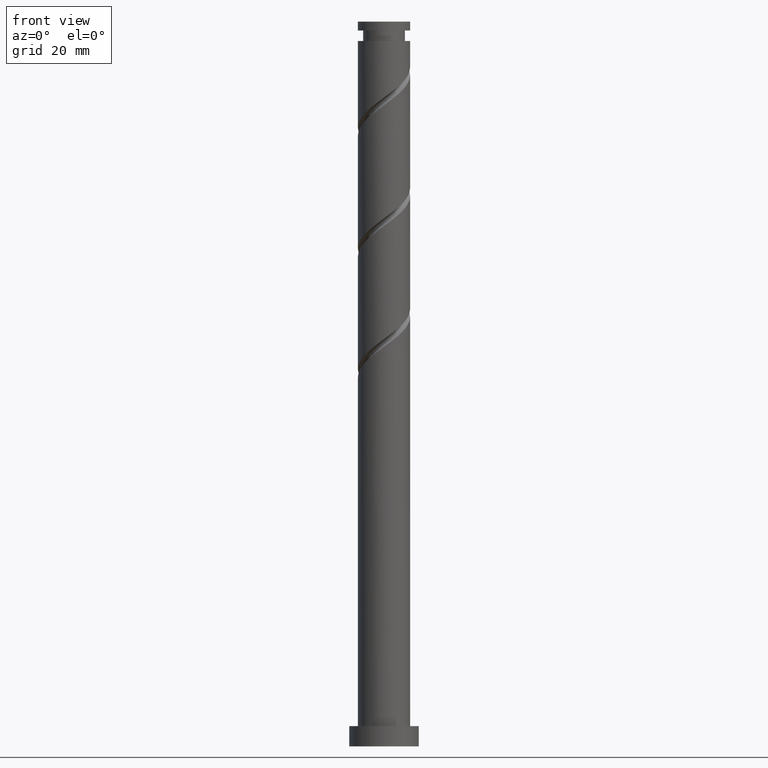
[diagram: clean part render]
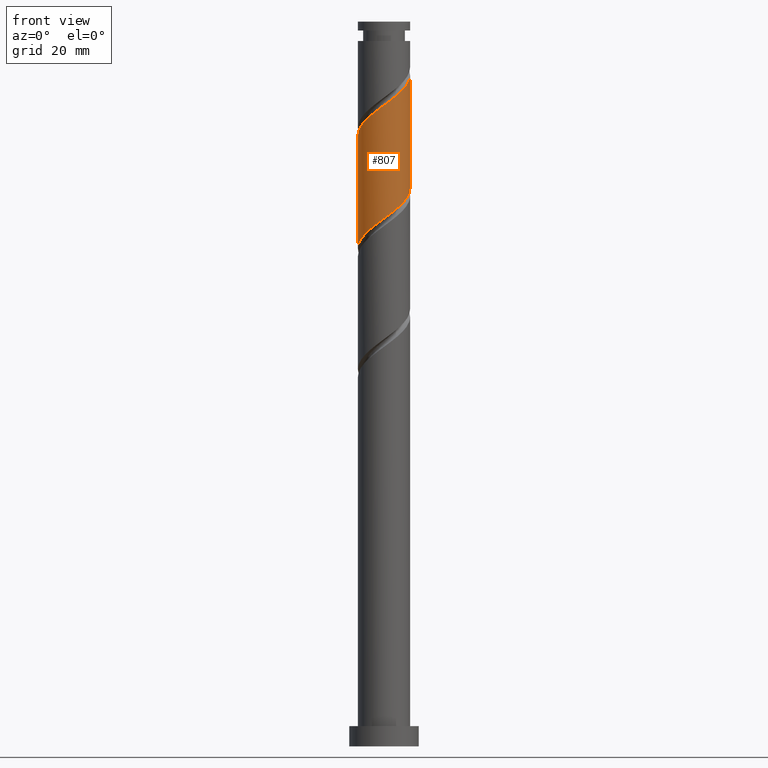
[diagram: same view with one face highlighted and labeled with its STEP entity id]
A machine part, front view. The second image highlights one B-rep face of the part: STEP entity #807.
In plain terms, the highlighted cylindrical surface (edge-blend (fillet) strip) has radius 9 mm, axis along (-0, -0, -1).
Its self-contained STEP definition (entity closure, byte-faithful):
#4 = CARTESIAN_POINT ( 'NONE',  ( 8.194847551901844440, -3.877973793086807230, 189.6285949597692024 ) ) ;
#15 = CARTESIAN_POINT ( 'NONE',  ( 2.861919278812256273, -8.602535973789519730, 223.2824411136154197 ) ) ;
#23 = CARTESIAN_POINT ( 'NONE',  ( 0.3718293201155509764, -8.992315772741880764, 182.4170564982307781 ) ) ;
#34 = CARTESIAN_POINT ( 'NONE',  ( 5.684690096369587664, -6.977413454012724614, 225.6862872674615517 ) ) ;
#39 = CARTESIAN_POINT ( 'NONE',  ( -9.000000000000012434, -6.221670429847296946E-15, 210.7365705197747445 ) ) ;
#41 = CARTESIAN_POINT ( 'NONE',  ( 8.881932594424455374, -1.453022156782449503, 230.4939795751537872 ) ) ;
#98 = DIRECTION ( 'NONE',  ( -0.000000000000000000, -0.000000000000000000, -1.000000000000000000 ) ) ;
#105 = CARTESIAN_POINT ( 'NONE',  ( 0.000000000000000000, 0.000000000000000000, 250.0000000000000000 ) ) ;
#145 = CARTESIAN_POINT ( 'NONE',  ( -8.884780049955336878, -1.804131536971649741, 212.0644923956666901 ) ) ;
#149 = EDGE_LOOP ( 'NONE', ( #1182, #1352, #400, #968 ) ) ;
#159 = CARTESIAN_POINT ( 'NONE',  ( 8.539813800928584442, -2.841052665029232926, 190.4298770110512748 ) ) ;
#168 = CARTESIAN_POINT ( 'NONE',  ( 3.849698997916966903, -8.135097886653692711, 224.0837231648975205 ) ) ;
#177 = CARTESIAN_POINT ( 'NONE',  ( 8.276108812811241222, -3.536385572658672150, 228.8914154725897561 ) ) ;
#204 = CARTESIAN_POINT ( 'NONE',  ( -8.881932594424444716, -1.453022156782441732, 172.8016718828461649 ) ) ;
#255 =( BOUNDED_CURVE ( )  B_SPLINE_CURVE ( 2, ( #1713, #599, #1023, #1585, #159, #4, #1555, #1566, #1317, #419, #1298, #1408, #1160, #1278, #23, #1012, #609, #571, #296, #725, #1003, #1288, #589, #1575, #307, #1437, #204, #781, #1341 ),
 .UNSPECIFIED., .F., .T. ) 
 B_SPLINE_CURVE_WITH_KNOTS ( ( 3, 2, 2, 2, 2, 2, 2, 2, 2, 2, 2, 2, 2, 2, 3 ),
 ( 0.5545271625973833274, 0.5576923076923077094, 0.5673076923076922906, 0.5769230769230768718, 0.5865384615384615641, 0.5961538461538461453, 0.6057692307692307265, 0.6153846153846154188, 0.6250000000000000000, 0.6346153846153845812, 0.6442307692307692735, 0.6538461538461538547, 0.6634615384615384359, 0.6730769230769231282, 0.6795271625973834384 ),
 .UNSPECIFIED. ) 
 CURVE ( )  GEOMETRIC_REPRESENTATION_ITEM ( )  RATIONAL_B_SPLINE_CURVE ( ( 0.9061636035682715251, 0.9069090390690601744, 0.9090909090909166101, 0.9024626128164202621, 0.9090909090909166101, 0.9024626128164202621, 0.9090909090909166101, 0.9024626128164202621, 0.9090909090909166101, 0.9024626128164202621, 0.9090909090909166101, 0.9024626128164202621, 0.9090909090909166101, 0.9024626128164202621, 0.9090909090909166101, 0.9024626128164202621, 0.9090909090909166101, 0.9024626128164202621, 0.9090909090909166101, 0.9024626128164202621, 0.9090909090909166101, 0.9024626128164202621, 0.9090909090909166101, 0.9024626128164202621, 0.9090909090909166101, 0.9024626128164202621, 0.9090909090909166101, 0.9046444828382766978, 0.9061636035682715251 ) ) 
 REPRESENTATION_ITEM ( '' )  );
#287 = CARTESIAN_POINT ( 'NONE',  ( -2.513026658482502729, -8.642030838509922930, 219.2760308572051713 ) ) ;
#296 = CARTESIAN_POINT ( 'NONE',  ( -3.849698997916967791, -8.135097886653674948, 179.2119282931026021 ) ) ;
#307 = CARTESIAN_POINT ( 'NONE',  ( -8.276108812811228788, -3.536385572658663268, 174.4042359854103097 ) ) ;
#316 = CARTESIAN_POINT ( 'NONE',  ( -3.562359181962312160, -8.336894157746568723, 218.4747488059231273 ) ) ;
#379 = VECTOR ( 'NONE', #98, 1000.000000000000000 ) ;
#387 = DIRECTION ( 'NONE',  ( -0.000000000000000000, -0.000000000000000000, -1.000000000000000000 ) ) ;
#400 = ORIENTED_EDGE ( 'NONE', *, *, #1593, .T. ) ;
#419 = CARTESIAN_POINT ( 'NONE',  ( 5.453992861915037516, -7.242110811148886995, 186.4234667546410265 ) ) ;
#427 = CARTESIAN_POINT ( 'NONE',  ( -1.463694135002693519, -8.947167519273277136, 220.0773129084871869 ) ) ;
#438 = CARTESIAN_POINT ( 'NONE',  ( 4.837478717021678420, -7.667659799517866581, 224.8850052161795361 ) ) ;
#527 = FACE_OUTER_BOUND ( 'NONE', #149, .T. ) ;
#540 = VECTOR ( 'NONE', #954, 1000.000000000000000 ) ;
#571 = CARTESIAN_POINT ( 'NONE',  ( -2.861919278812258494, -8.602535973789500190, 180.0132103443845892 ) ) ;
#589 = CARTESIAN_POINT ( 'NONE',  ( -7.189307669428957048, -5.414227113290500881, 176.0068000879743977 ) ) ;
#599 = CARTESIAN_POINT ( 'NONE',  ( 9.000000000000000000, -0.3579581730309212562, 192.2949100225922621 ) ) ;
#609 = CARTESIAN_POINT ( 'NONE',  ( -1.790977386791918313, -8.820000000000000284, 180.8144923956666901 ) ) ;
#725 = CARTESIAN_POINT ( 'NONE',  ( -4.837478717021676644, -7.667659799517847929, 178.4106462418205012 ) ) ;
#734 = CARTESIAN_POINT ( 'NONE',  ( 8.705503762482042163, -2.531484027243907420, 229.6926975238717716 ) ) ;
#781 = CARTESIAN_POINT ( 'NONE',  ( -9.000000000000007105, -0.7313079468333955058, 172.2654483422401483 ) ) ;
#787 = CARTESIAN_POINT ( 'NONE',  ( 9.000000000000001776, 1.102182119232617911E-15, 250.0000000000000000 ) ) ;
#803 = CARTESIAN_POINT ( 'NONE',  ( 9.000000000000001776, -9.272681890637864536E-15, 192.5590809382252075 ) ) ;
#807 = ADVANCED_FACE ( 'NONE', ( #527 ), #1246, .T. ) ;
#829 = EDGE_CURVE ( 'NONE', #1478, #1301, #1334, .T. ) ;
#848 = CARTESIAN_POINT ( 'NONE',  ( -6.241326581552884001, -6.484276559678935570, 216.0709026520769385 ) ) ;
#856 = CARTESIAN_POINT ( 'NONE',  ( 1.790977386791917647, -8.820000000000012719, 222.4811590623333473 ) ) ;
#866 = CARTESIAN_POINT ( 'NONE',  ( -4.508176021938681721, -7.789502484447732300, 217.6734667546410265 ) ) ;
#878 = CARTESIAN_POINT ( 'NONE',  ( -5.453992861915051726, -7.242110811148893212, 216.8721847033589540 ) ) ;
#889 = CARTESIAN_POINT ( 'NONE',  ( -0.3718293201155592476, -8.992315772741894975, 220.8785949597692309 ) ) ;
#910 = EDGE_CURVE ( 'NONE', #1740, #1129, #255, .T. ) ;
#954 = DIRECTION ( 'NONE',  ( -0.000000000000000000, -0.000000000000000000, -1.000000000000000000 ) ) ;
#966 = LINE ( 'NONE', #787, #379 ) ;
#968 = ORIENTED_EDGE ( 'NONE', *, *, #910, .F. ) ;
#1003 = CARTESIAN_POINT ( 'NONE',  ( -5.684690096369581447, -6.977413454012713956, 177.6093641905384288 ) ) ;
#1012 = CARTESIAN_POINT ( 'NONE',  ( -0.7200354947715811305, -9.037464026210495049, 181.6157744469487056 ) ) ;
#1023 = CARTESIAN_POINT ( 'NONE',  ( 8.971570738161089409, -0.7147856253253362935, 192.0324411136154481 ) ) ;
#1041 = CARTESIAN_POINT ( 'NONE',  ( 7.846713863140434064, -4.541287118073442208, 228.0901334213076836 ) ) ;
#1085 = LINE ( 'NONE', #1520, #540 ) ;
#1099 = CARTESIAN_POINT ( 'NONE',  ( -9.000000000000012434, -6.221670429847296946E-15, 210.7365705197747445 ) ) ;
#1129 = VERTEX_POINT ( 'NONE', #1800 ) ;
#1149 = CARTESIAN_POINT ( 'NONE',  ( 9.000000000000010658, 4.995283470117782016E-15, 231.5699038531080873 ) ) ;
#1160 = CARTESIAN_POINT ( 'NONE',  ( 2.513026658482495179, -8.642030838509908719, 184.0196206007948660 ) ) ;
#1170 = CARTESIAN_POINT ( 'NONE',  ( -8.539813800928600429, -2.841052665029230262, 212.8657744469487056 ) ) ;
#1182 = ORIENTED_EDGE ( 'NONE', *, *, #1514, .F. ) ;
#1246 = CYLINDRICAL_SURFACE ( 'NONE', #1722, 9.000000000000001776 ) ;
#1278 = CARTESIAN_POINT ( 'NONE',  ( 1.463694135002683083, -8.947167519273268255, 183.2183385495128221 ) ) ;
#1288 = CARTESIAN_POINT ( 'NONE',  ( -6.531901475717487138, -6.287167108507572877, 176.8080821392563848 ) ) ;
#1298 = CARTESIAN_POINT ( 'NONE',  ( 4.508176021938668399, -7.789502484447722530, 185.6221847033590393 ) ) ;
#1301 = VERTEX_POINT ( 'NONE', #1473 ) ;
#1308 = CARTESIAN_POINT ( 'NONE',  ( -7.611753926546287907, -4.802208050647889692, 214.4683385495128505 ) ) ;
#1317 = CARTESIAN_POINT ( 'NONE',  ( 6.241326581552871566, -6.484276559678926688, 187.2247488059231273 ) ) ;
#1334 =( BOUNDED_CURVE ( )  B_SPLINE_CURVE ( 2, ( #1099, #1675, #1595, #145, #1170, #1745, #1308, #1736, #848, #878, #866, #316, #287, #427, #889, #1445, #856, #15, #168, #438, #34, #1703, #1725, #1041, #177, #734, #41, #1415, #1149 ),
 .UNSPECIFIED., .F., .T. ) 
 B_SPLINE_CURVE_WITH_KNOTS ( ( 3, 2, 2, 2, 2, 2, 2, 2, 2, 2, 2, 2, 2, 2, 3 ),
 ( 0.5545271625973833274, 0.5576923076923077094, 0.5673076923076922906, 0.5769230769230768718, 0.5865384615384615641, 0.5961538461538461453, 0.6057692307692308376, 0.6153846153846154188, 0.6250000000000000000, 0.6346153846153845812, 0.6442307692307691624, 0.6538461538461538547, 0.6634615384615384359, 0.6730769230769231282, 0.6795271625973832164 ),
 .UNSPECIFIED. ) 
 CURVE ( )  GEOMETRIC_REPRESENTATION_ITEM ( )  RATIONAL_B_SPLINE_CURVE ( ( 0.9061636035682775203, 0.9069090390690661696, 0.9090909090909228274, 0.9024626128164262573, 0.9090909090909228274, 0.9024626128164262573, 0.9090909090909228274, 0.9024626128164262573, 0.9090909090909228274, 0.9024626128164262573, 0.9090909090909228274, 0.9024626128164262573, 0.9090909090909228274, 0.9024626128164262573, 0.9090909090909228274, 0.9024626128164262573, 0.9090909090909228274, 0.9024626128164262573, 0.9090909090909228274, 0.9024626128164262573, 0.9090909090909228274, 0.9024626128164262573, 0.9090909090909228274, 0.9024626128164262573, 0.9090909090909228274, 0.9024626128164262573, 0.9090909090909228274, 0.9046444828382829151, 0.9061636035682776313 ) ) 
 REPRESENTATION_ITEM ( '' )  );
#1341 = CARTESIAN_POINT ( 'NONE',  ( -9.000000000000001776, 5.593521011449292137E-15, 171.7257476048918363 ) ) ;
#1352 = ORIENTED_EDGE ( 'NONE', *, *, #829, .F. ) ;
#1408 = CARTESIAN_POINT ( 'NONE',  ( 3.562359181962302390, -8.336894157746556289, 184.8209026520768532 ) ) ;
#1415 = CARTESIAN_POINT ( 'NONE',  ( 9.000000000000012434, -0.7313079468334245936, 231.0302031157597753 ) ) ;
#1437 = CARTESIAN_POINT ( 'NONE',  ( -8.705503762482027952, -2.531484027243894985, 173.6029539341281520 ) ) ;
#1445 = CARTESIAN_POINT ( 'NONE',  ( 0.7200354947715748022, -9.037464026210509260, 221.6798770110512748 ) ) ;
#1473 = CARTESIAN_POINT ( 'NONE',  ( 9.000000000000012434, 4.995283470117782016E-15, 231.5699038531080873 ) ) ;
#1478 = VERTEX_POINT ( 'NONE', #39 ) ;
#1514 = EDGE_CURVE ( 'NONE', #1301, #1740, #966, .T. ) ;
#1520 = CARTESIAN_POINT ( 'NONE',  ( -9.000000000000001776, 0.000000000000000000, 250.0000000000000000 ) ) ;
#1555 = CARTESIAN_POINT ( 'NONE',  ( 7.611753926546275473, -4.802208050647887916, 188.8273129084871584 ) ) ;
#1566 = CARTESIAN_POINT ( 'NONE',  ( 7.028660301190700288, -5.726442308208967269, 188.0260308572051144 ) ) ;
#1575 = CARTESIAN_POINT ( 'NONE',  ( -7.846713863140423406, -4.541287118073426221, 175.2055180366923253 ) ) ;
#1585 = CARTESIAN_POINT ( 'NONE',  ( 8.884780049955320891, -1.804131536971650407, 191.2311590623333473 ) ) ;
#1593 = EDGE_CURVE ( 'NONE', #1478, #1129, #1085, .T. ) ;
#1595 = CARTESIAN_POINT ( 'NONE',  ( -8.971570738161101843, -0.7147856253253278558, 211.2632103443846177 ) ) ;
#1675 = CARTESIAN_POINT ( 'NONE',  ( -9.000000000000015987, -0.3579581730309135956, 211.0007414354077753 ) ) ;
#1703 = CARTESIAN_POINT ( 'NONE',  ( 6.531901475717496020, -6.287167108507587976, 226.4875693187436241 ) ) ;
#1713 = CARTESIAN_POINT ( 'NONE',  ( 9.000000000000001776, -9.272681890637864536E-15, 192.5590809382252075 ) ) ;
#1722 = AXIS2_PLACEMENT_3D ( 'NONE', #105, #387, #1802 ) ;
#1725 = CARTESIAN_POINT ( 'NONE',  ( 7.189307669428963266, -5.414227113290515980, 227.2888513700256681 ) ) ;
#1736 = CARTESIAN_POINT ( 'NONE',  ( -7.028660301190715387, -5.726442308208970822, 215.2696206007948376 ) ) ;
#1740 = VERTEX_POINT ( 'NONE', #803 ) ;
#1745 = CARTESIAN_POINT ( 'NONE',  ( -8.194847551901860427, -3.877973793086812559, 213.6670564982308065 ) ) ;
#1800 = CARTESIAN_POINT ( 'NONE',  ( -9.000000000000001776, 5.593521011449292137E-15, 171.7257476048918363 ) ) ;
#1802 = DIRECTION ( 'NONE',  ( -1.000000000000000000, 0.000000000000000000, 0.000000000000000000 ) ) ;